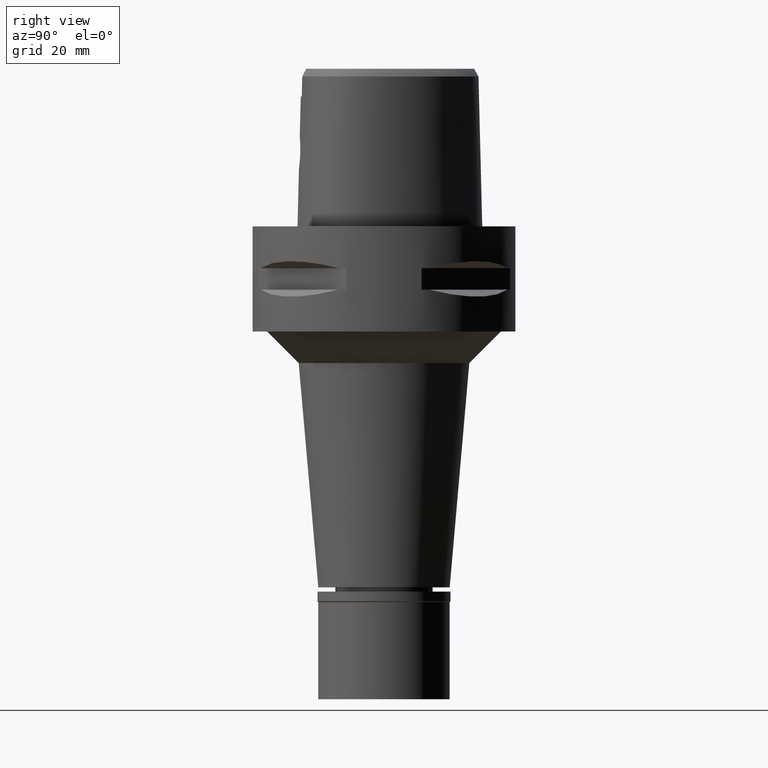
[diagram: clean part render]
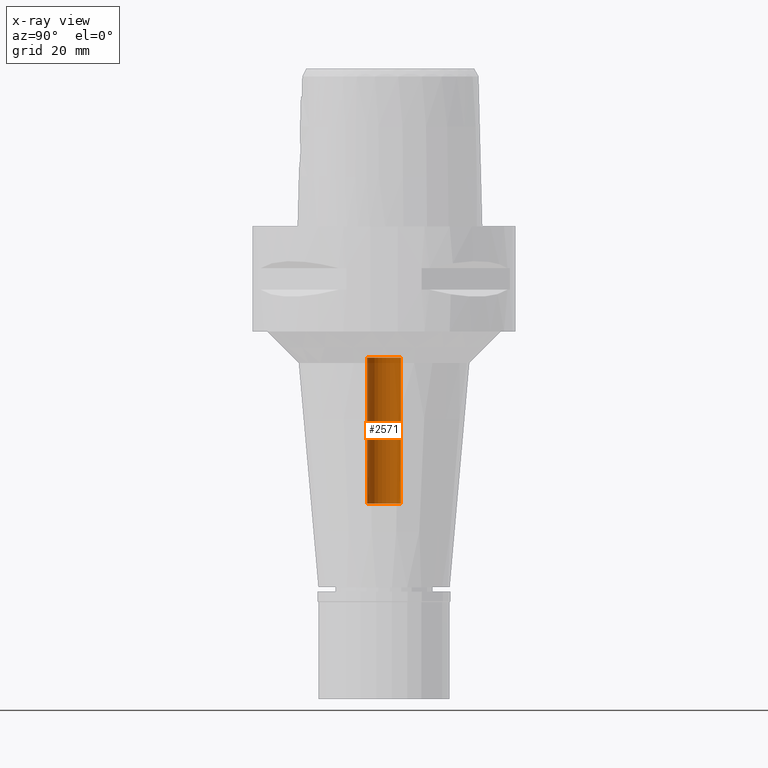
[diagram: x-ray — body ghosted, one internal face saturated and labeled with its STEP entity id]
A machine part, right view, then the same camera in x-ray: the body is ghosted and one INTERNAL B-rep face — a face not visible from any outside direction — is saturated and labeled: STEP entity #2571.
In plain terms, the highlighted cylindrical surface (edge-blend (fillet) strip) has radius 3.2 mm, axis along (0, 0, -1).
Its self-contained STEP definition (entity closure, byte-faithful):
#79 = DIRECTION ( 'NONE',  ( 0.0000000000000000000, 0.0000000000000000000, 1.000000000000000000 ) ) ;
#108 = EDGE_CURVE ( 'NONE', #1774, #1869, #4382, .T. ) ;
#147 = AXIS2_PLACEMENT_3D ( 'NONE', #2776, #3929, #4656 ) ;
#199 = FACE_OUTER_BOUND ( 'NONE', #3429, .T. ) ;
#459 = CARTESIAN_POINT ( 'NONE',  ( 0.0000000000000000000, 1.275959500031999927E-14, 4.190000000000000391 ) ) ;
#549 = AXIS2_PLACEMENT_3D ( 'NONE', #459, #3484, #805 ) ;
#573 = CYLINDRICAL_SURFACE ( 'NONE', #549, 3.200000000000000178 ) ;
#640 = ORIENTED_EDGE ( 'NONE', *, *, #992, .T. ) ;
#647 = CARTESIAN_POINT ( 'NONE',  ( 0.0000000000000000000, 3.200000000000000178, -52.79999999999999716 ) ) ;
#805 = DIRECTION ( 'NONE',  ( 0.0000000000000000000, -1.000000000000000000, 0.0000000000000000000 ) ) ;
#992 = EDGE_CURVE ( 'NONE', #4945, #1774, #2536, .T. ) ;
#1075 = DIRECTION ( 'NONE',  ( 0.0000000000000000000, 0.0000000000000000000, 1.000000000000000000 ) ) ;
#1158 = VERTEX_POINT ( 'NONE', #3308 ) ;
#1187 = VECTOR ( 'NONE', #79, 1000.000000000000000 ) ;
#1353 = CARTESIAN_POINT ( 'NONE',  ( 0.0000000000000000000, 1.275959500031999927E-14, -25.00000000000000000 ) ) ;
#1401 = LINE ( 'NONE', #4666, #1187 ) ;
#1774 = VERTEX_POINT ( 'NONE', #3252 ) ;
#1815 = ORIENTED_EDGE ( 'NONE', *, *, #2250, .T. ) ;
#1821 = AXIS2_PLACEMENT_3D ( 'NONE', #1353, #2864, #4420 ) ;
#1869 = VERTEX_POINT ( 'NONE', #2298 ) ;
#1983 = EDGE_CURVE ( 'NONE', #1158, #1869, #1401, .T. ) ;
#1990 = VECTOR ( 'NONE', #1075, 1000.000000000000000 ) ;
#2250 = EDGE_CURVE ( 'NONE', #1158, #4945, #3172, .T. ) ;
#2298 = CARTESIAN_POINT ( 'NONE',  ( 0.0000000000000000000, -3.200000000000000178, -25.00000000000000000 ) ) ;
#2533 = CARTESIAN_POINT ( 'NONE',  ( 0.0000000000000000000, 3.200000000000000178, -52.79999999999999716 ) ) ;
#2536 = LINE ( 'NONE', #647, #1990 ) ;
#2571 = ADVANCED_FACE ( 'NONE', ( #199 ), #573, .F. ) ;
#2776 = CARTESIAN_POINT ( 'NONE',  ( 0.0000000000000000000, 1.275959500031999927E-14, -52.79999999999999716 ) ) ;
#2864 = DIRECTION ( 'NONE',  ( 0.0000000000000000000, 0.0000000000000000000, 1.000000000000000000 ) ) ;
#3172 = CIRCLE ( 'NONE', #147, 3.200000000000000178 ) ;
#3204 = ORIENTED_EDGE ( 'NONE', *, *, #1983, .F. ) ;
#3252 = CARTESIAN_POINT ( 'NONE',  ( 0.0000000000000000000, 3.200000000000000178, -25.00000000000000000 ) ) ;
#3308 = CARTESIAN_POINT ( 'NONE',  ( 0.0000000000000000000, -3.200000000000000178, -52.79999999999999716 ) ) ;
#3429 = EDGE_LOOP ( 'NONE', ( #3664, #3204, #1815, #640 ) ) ;
#3484 = DIRECTION ( 'NONE',  ( 0.0000000000000000000, 0.0000000000000000000, -1.000000000000000000 ) ) ;
#3664 = ORIENTED_EDGE ( 'NONE', *, *, #108, .T. ) ;
#3929 = DIRECTION ( 'NONE',  ( 0.0000000000000000000, 0.0000000000000000000, -1.000000000000000000 ) ) ;
#4382 = CIRCLE ( 'NONE', #1821, 3.200000000000000178 ) ;
#4420 = DIRECTION ( 'NONE',  ( 0.0000000000000000000, 1.000000000000000000, 0.0000000000000000000 ) ) ;
#4656 = DIRECTION ( 'NONE',  ( 0.0000000000000000000, -1.000000000000000000, 0.0000000000000000000 ) ) ;
#4666 = CARTESIAN_POINT ( 'NONE',  ( 0.0000000000000000000, -3.200000000000000178, -52.79999999999999716 ) ) ;
#4945 = VERTEX_POINT ( 'NONE', #2533 ) ;